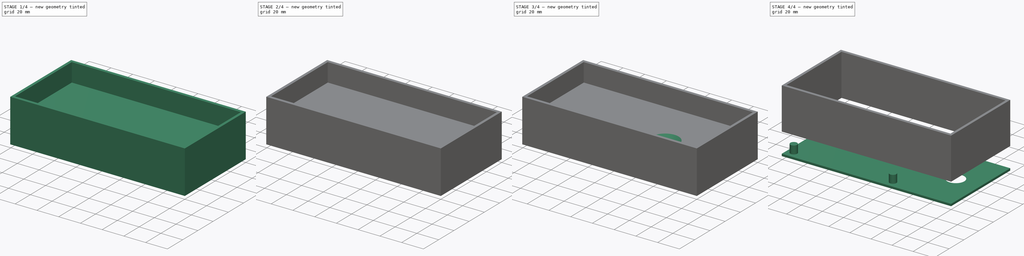
[diagram: build sequence overview — one tinted view per stage of 4, left to right]
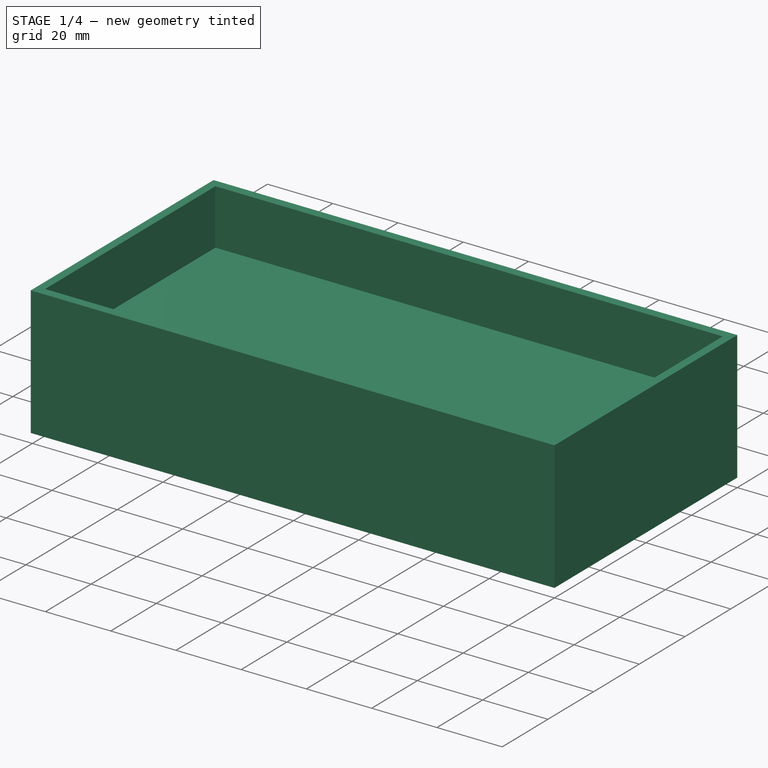
[diagram: stage 1 of 4 — iso view after this stage's code; geometry added in this stage tinted green]
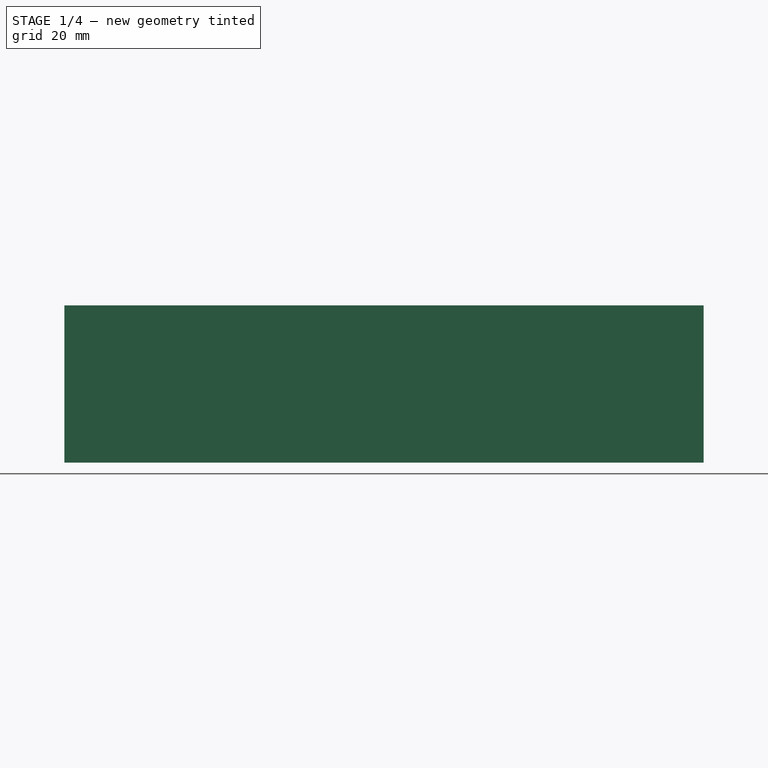
[diagram: stage 1 of 4 — front view after this stage's code; geometry added in this stage tinted green]
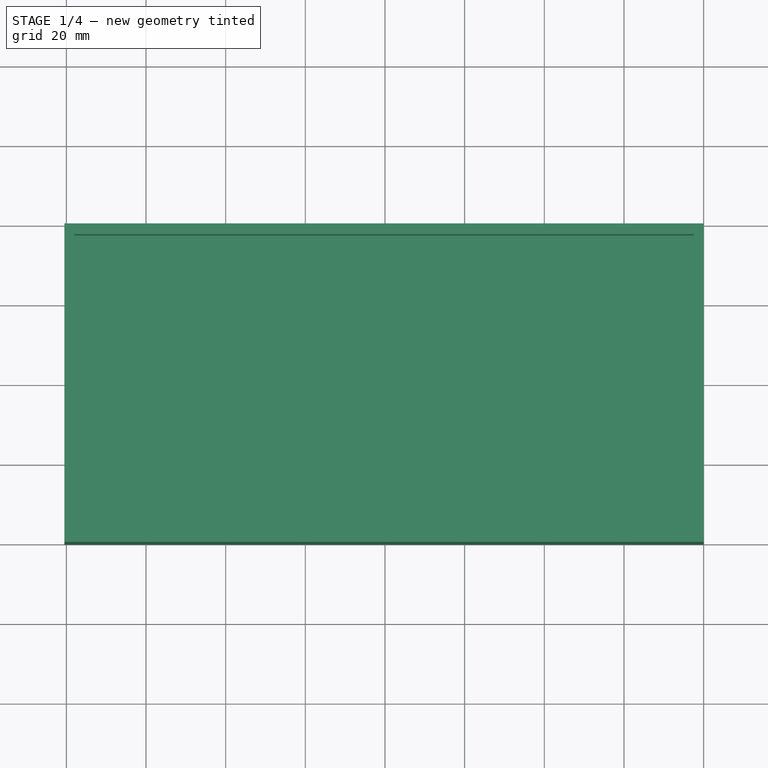
[diagram: stage 1 of 4 — top view after this stage's code; geometry added in this stage tinted green]
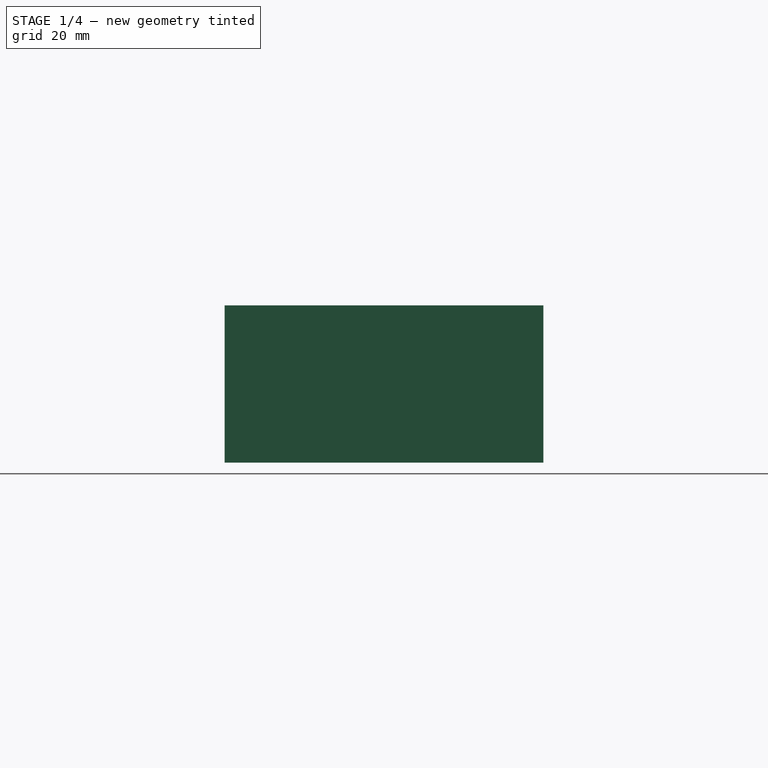
[diagram: stage 1 of 4 — right view after this stage's code; geometry added in this stage tinted green]
FCSTD DOCUMENT  (FreeCAD 0.20R29603 (Git))
Label: Case
License: All rights reserved
LicenseURL: http://en.wikipedia.org/wiki/All_rights_reserved
objects: Part::Feature×3, Sketcher::SketchObject×3, PartDesign::SubtractiveCone×3, PartDesign::Pad×2, PartDesign::AdditiveCone×2, PartDesign::Body×2, PartDesign::AdditiveCylinder×1, PartDesign::LinearPattern×1, PartDesign::Mirrored×1, PartDesign::MultiTransform×1, Part::FeaturePython×1
note: 28 computed .brp shape members not serialized (recipe doc carries the construction recipe); baked Part::Feature solids carry a one-line shape summary decoded from their .brp

FEATURE [Part::Feature] SpectDrone_1001  label="SpectDrone 002"
  shape: large baked B-rep (67 MB .brp); summary skipped
FEATURE [Part::Feature] SpectDroneControl_1001  label="SpectDroneControl 002"
  Placement = pos=(0,0,11.25) rot=(0,0,1;0rad)
  shape: bbox 101.6 x 73.67 x 14.11 mm, 5388 faces, 102 solids (baked)
FEATURE [Part::Feature] TestComponents_1001  label="TestComponents 002"
  Placement = pos=(0,0,-11.25) rot=(0,0,1;0rad)
  shape: bbox 101.6 x 73.66 x 14.56 mm, 4258 faces, 74 solids (baked)
FEATURE [Sketcher::SketchObject] Sketch
  FullyConstrained = true
  MapMode = 5
  Support = -> [XY_Plane]
  sketch-geometry (8):
    g0: LineSegment StartX=-100.5 StartY=40 StartZ=0 EndX=60 EndY=40 EndZ=0
    g1: LineSegment StartX=60 StartY=40 StartZ=0 EndX=60 EndY=-40 EndZ=0
    g2: LineSegment StartX=60 StartY=-40 StartZ=0 EndX=-100.5 EndY=-40 EndZ=0
    g3: LineSegment StartX=-100.5 StartY=-40 StartZ=0 EndX=-100.5 EndY=40 EndZ=0
    g4: LineSegment StartX=-98 StartY=37.25 StartZ=0 EndX=57.5 EndY=37.25 EndZ=0
    g5: LineSegment StartX=57.5 StartY=37.25 StartZ=0 EndX=57.5 EndY=-37.25 EndZ=0
    g6: LineSegment StartX=57.5 StartY=-37.25 StartZ=0 EndX=-98 EndY=-37.25 EndZ=0
    g7: LineSegment StartX=-98 StartY=-37.25 StartZ=0 EndX=-98 EndY=37.25 EndZ=0
  constraints (22):
    c: Coincident(g0,g1)
    c: Coincident(g1,g2)
    c: Coincident(g2,g3)
    c: Coincident(g3,g0)
    c: Horizontal(g0)
    c: Horizontal(g2)
    c: Vertical(g3)
    c: DistanceX(g-1,g1) = 60
    c: DistanceX(g2,g-1) = 100.5
    c: Symmetric(g1,g0,g-1)
    c: DistanceY(g1,g1) = 80
    c: Coincident(g4,g5)
    c: Coincident(g5,g6)
    c: Coincident(g6,g7)
    c: Coincident(g7,g4)
    c: Horizontal(g4)
    c: Horizontal(g6)
    c: Vertical(g7)
    c: DistanceX(g-1,g5) = 57.5
    c: DistanceX(g6,g-1) = 98
    c: Symmetric(g4,g5,g-1)
    c: DistanceY(g5,g5) = 74.5
FEATURE [PartDesign::Pad] Pad
  Direction = (0,0,1)
  Length = 39.5
  Length2 = 10
  Profile = -> Sketch
  ReferenceAxis = -> Sketch [N_Axis]
  Type = 0
FEATURE [Sketcher::SketchObject] Sketch001
  FullyConstrained = true
  MapMode = 5
  Placement = pos=(0,0,0) rot=(1,0,0;1.5708rad)
  Support = -> [XZ_Plane001]
  sketch-geometry (4):
    g0: LineSegment StartX=-100.5 StartY=22.5 StartZ=0 EndX=60 EndY=22.5 EndZ=0
    g1: LineSegment StartX=60 StartY=22.5 StartZ=0 EndX=60 EndY=20.5 EndZ=0
    g2: LineSegment StartX=60 StartY=20.5 StartZ=0 EndX=-100.5 EndY=20.5 EndZ=0
    g3: LineSegment StartX=-100.5 StartY=20.5 StartZ=0 EndX=-100.5 EndY=22.5 EndZ=0
  constraints (12):
    c: Coincident(g0,g1)
    c: Coincident(g1,g2)
    c: Coincident(g2,g3)
    c: Coincident(g3,g0)
    c: Horizontal(g0)
    c: Horizontal(g2)
    c: Vertical(g1)
    c: Vertical(g3)
    c: DistanceX(g0,g-1) = 100.5
    c: DistanceX(g-1,g0) = 60
    c: DistanceY(g1,g1) = 2
    c: DistanceY(g-1,g1) = 20.5
FEATURE [PartDesign::Pad] Pad001
  Direction = (0,-1,2e-16)
  Length = 80
  Length2 = 10
  Midplane = true
  Placement = pos=(0,0,0) rot=(1,0,0;1.5708rad)
  Profile = -> Sketch001
  ReferenceAxis = -> Sketch001 [N_Axis]
  Type = 0
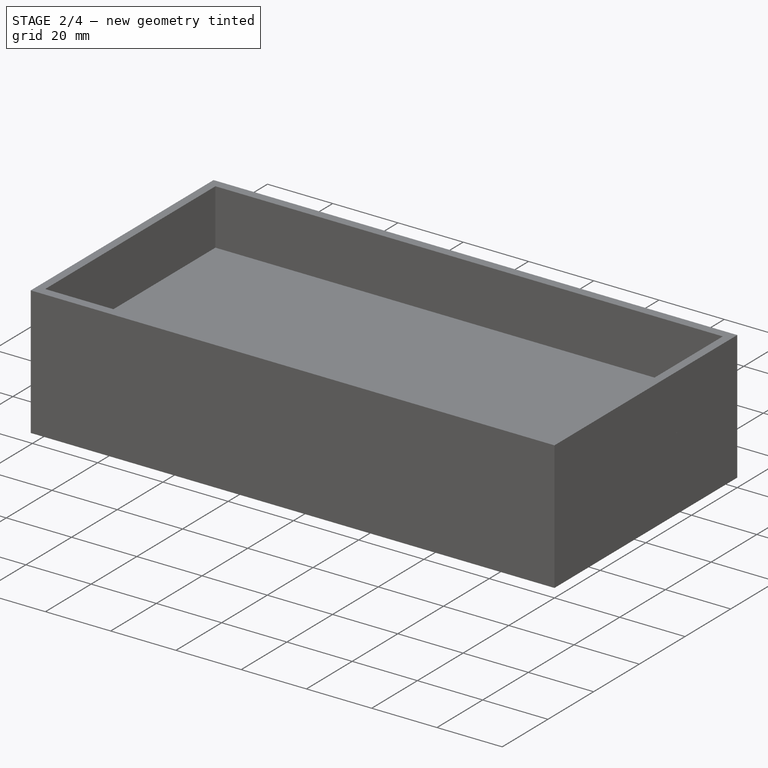
[diagram: stage 2 of 4 — iso view after this stage's code; geometry added in this stage tinted green]
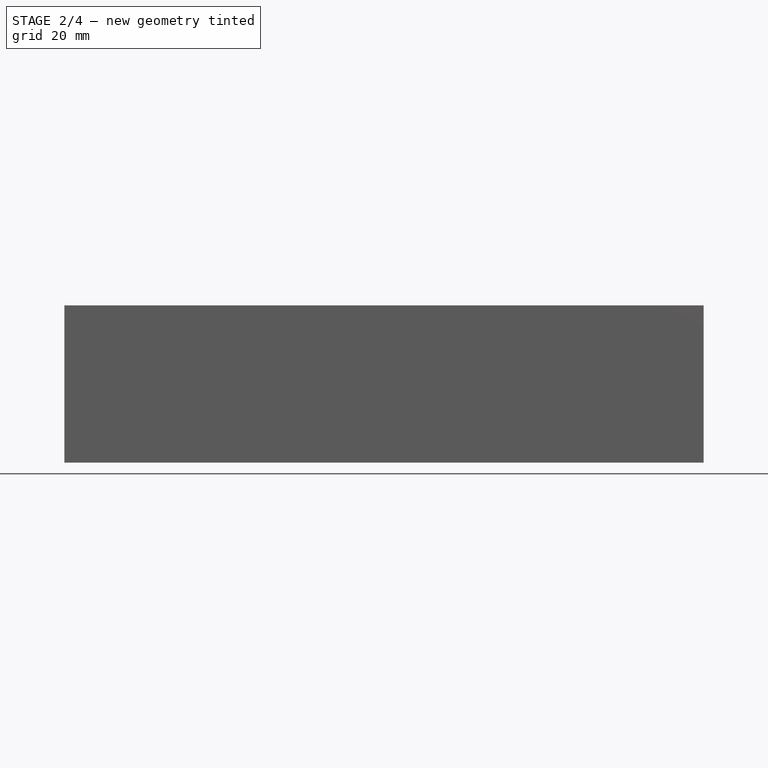
[diagram: stage 2 of 4 — front view after this stage's code; geometry added in this stage tinted green]
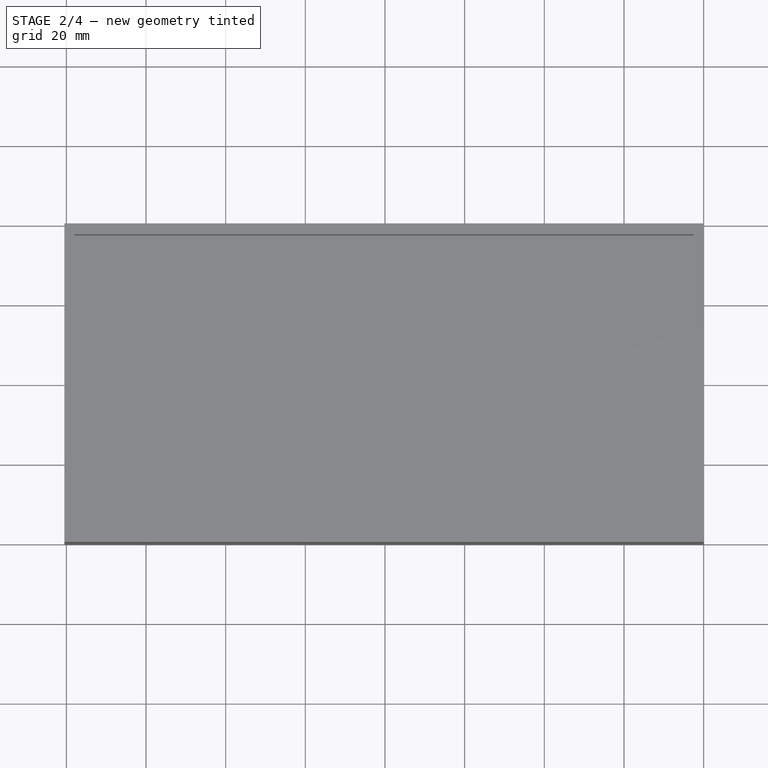
[diagram: stage 2 of 4 — top view after this stage's code; geometry added in this stage tinted green]
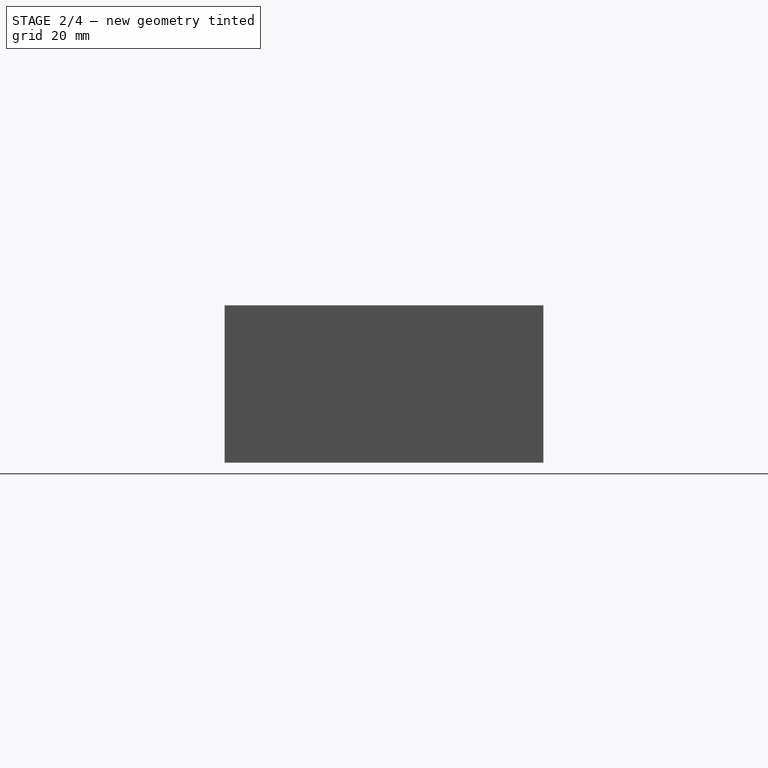
[diagram: stage 2 of 4 — right view after this stage's code; geometry added in this stage tinted green]
FEATURE [PartDesign::AdditiveCone] Cone002  label="Cone001"
  Angle = 360
  AttacherType = Attacher::AttachEngine3D
  AttachmentOffset = pos=(11.4,-12.2,12.75) rot=(0,0,1;0rad)
  BaseFeature = -> Pad001
  Height = 8.75
  MapMode = 5
  Placement = pos=(11.4,-12.2,12.75) rot=(0,0,1;0rad)
  Radius1 = 2.5
  Radius2 = 12.5
  Support = -> [XY_Plane001]
FEATURE [PartDesign::AdditiveCone] Cone003
  Angle = 360
  AttacherType = Attacher::AttachEngine3D
  AttachmentOffset = pos=(6.85,-25.85,12.75) rot=(0,0,1;0rad)
  BaseFeature = -> Cone002
  Height = 8.75
  MapMode = 5
  Placement = pos=(6.85,-25.85,12.75) rot=(0,0,1;0rad)
  Radius1 = 2.5
  Radius2 = 12.5
  Support = -> [XY_Plane001]
FEATURE [PartDesign::AdditiveCylinder] Cylinder
  Angle = 360
  AttacherType = Attacher::AttachEngine3D
  AttachmentOffset = pos=(-6.85,7.175,0) rot=(0,0,1;0rad)
  BaseFeature = -> Cone003
  FirstAngle = 0
  Height = 7.65
  MapMode = 5
  Placement = pos=(0,-33.025,20.5) rot=(1,0,0;3.14159rad)
  Radius = 3.25
  SecondAngle = 0
  Support = -> [Cone003]
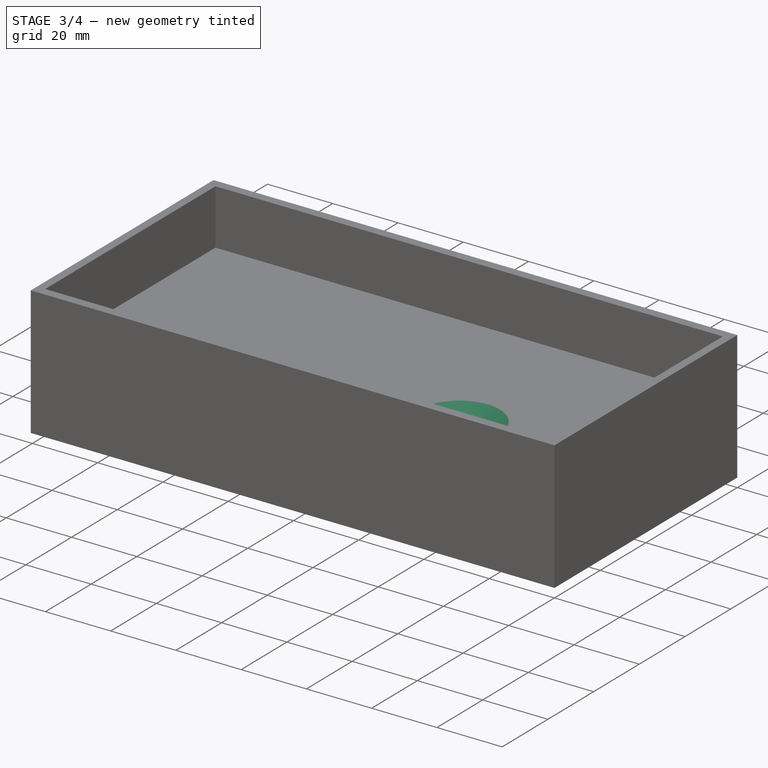
[diagram: stage 3 of 4 — iso view after this stage's code; geometry added in this stage tinted green]
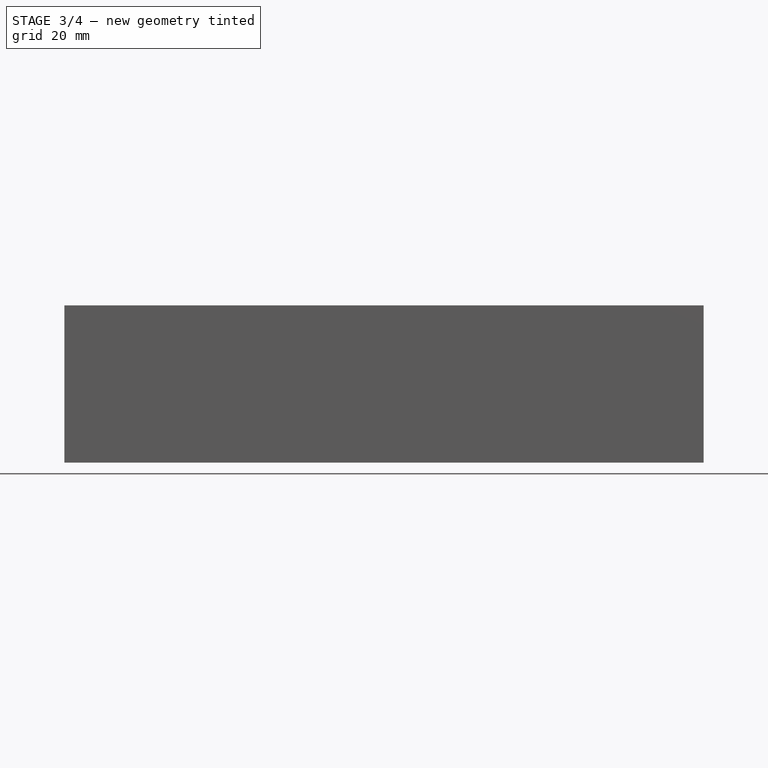
[diagram: stage 3 of 4 — front view after this stage's code; geometry added in this stage tinted green]
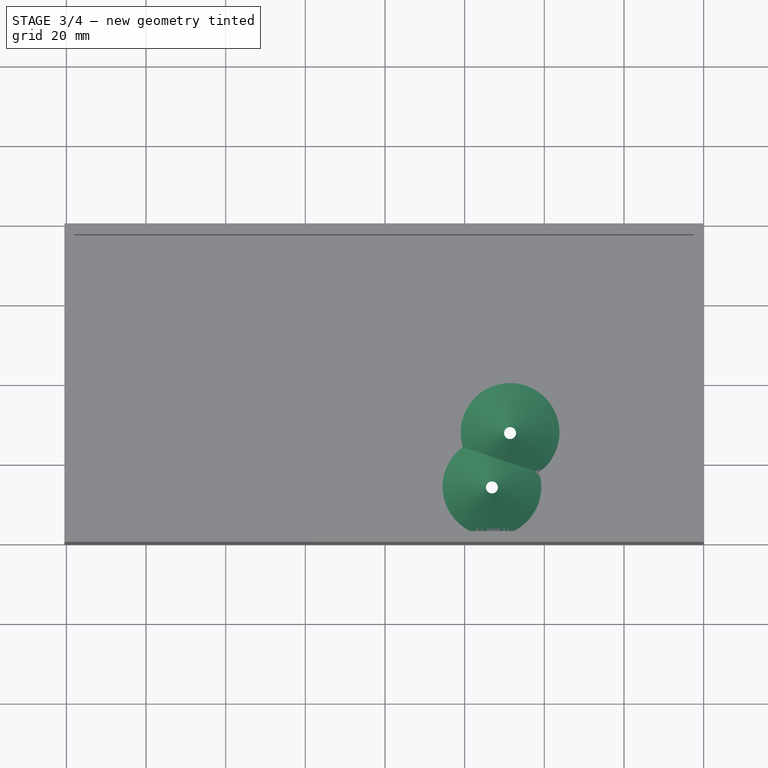
[diagram: stage 3 of 4 — top view after this stage's code; geometry added in this stage tinted green]
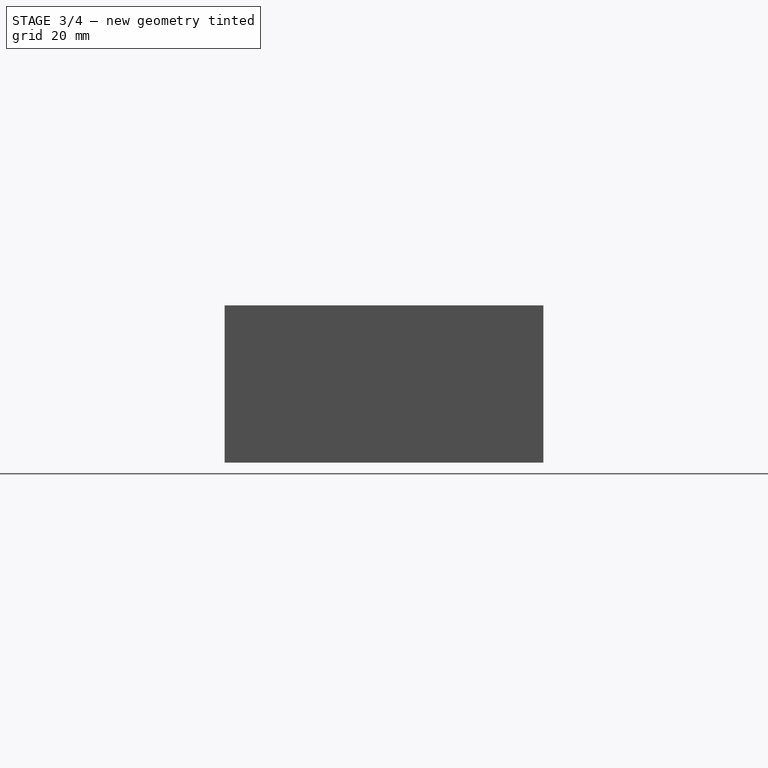
[diagram: stage 3 of 4 — right view after this stage's code; geometry added in this stage tinted green]
FEATURE [PartDesign::LinearPattern] LinearPattern
  Direction = -> X_Axis001
  Length = 94
  Occurrences = 2
  Placement = pos=(0,-33.025,20.5) rot=(1,0,0;3.14159rad)
  Reversed = true
FEATURE [PartDesign::Mirrored] Mirrored
  MirrorPlane = -> XZ_Plane001
  Placement = pos=(0,-33.025,20.5) rot=(1,0,0;3.14159rad)
FEATURE [PartDesign::MultiTransform] MultiTransform
  BaseFeature = -> Cylinder
  Originals = -> [Cylinder]
  Placement = pos=(0,-33.025,20.5) rot=(1,0,0;3.14159rad)
  Transformations = -> [LinearPattern,Mirrored]
FEATURE [PartDesign::SubtractiveCone] Cone001  label="Cone004"
  Angle = 360
  AttacherType = Attacher::AttachEngine3D
  AttachmentOffset = pos=(11.4,-12.2,12.75) rot=(0,0,1;0rad)
  BaseFeature = -> MultiTransform
  Height = 10.75
  MapMode = 5
  Placement = pos=(11.4,-12.2,12.75) rot=(0,0,1;0rad)
  Radius1 = 1.5
  Radius2 = 13.5
  Support = -> [XY_Plane001]
FEATURE [PartDesign::SubtractiveCone] Cone004  label="Cone005"
  Angle = 360
  AttacherType = Attacher::AttachEngine3D
  AttachmentOffset = pos=(6.85,-25.85,12.75) rot=(0,0,1;0rad)
  BaseFeature = -> Cone001
  Height = 10.75
  MapMode = 5
  Placement = pos=(6.85,-25.85,12.75) rot=(0,0,1;0rad)
  Radius1 = 1.5
  Radius2 = 13.5
  Support = -> [XY_Plane001]
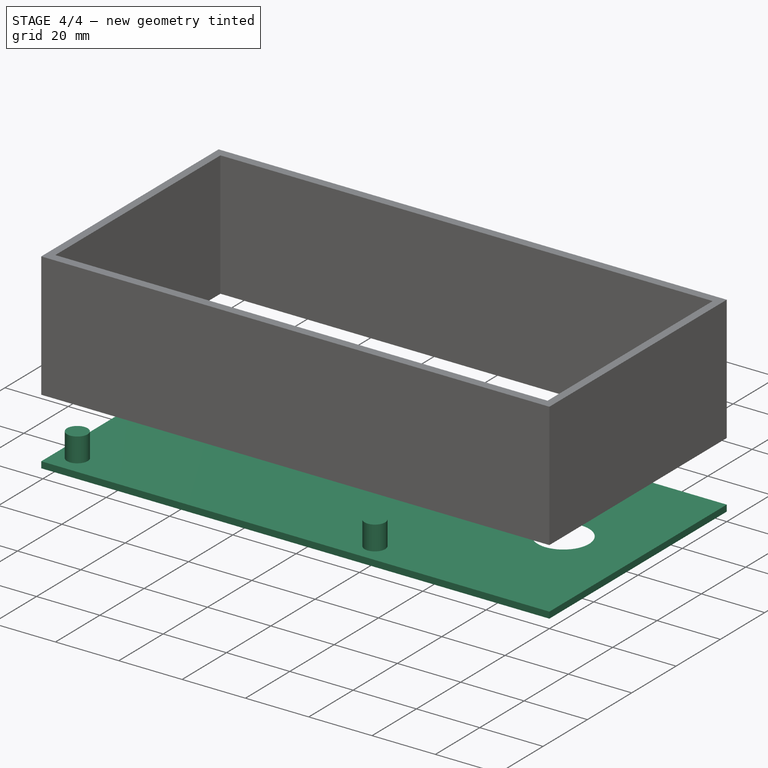
[diagram: stage 4 of 4 — iso view after this stage's code; geometry added in this stage tinted green]
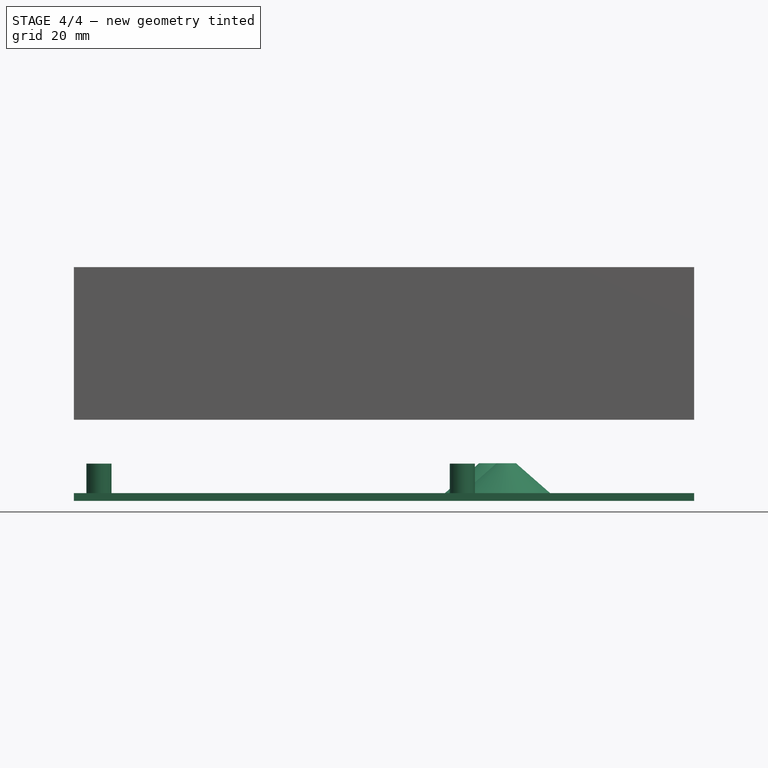
[diagram: stage 4 of 4 — front view after this stage's code; geometry added in this stage tinted green]
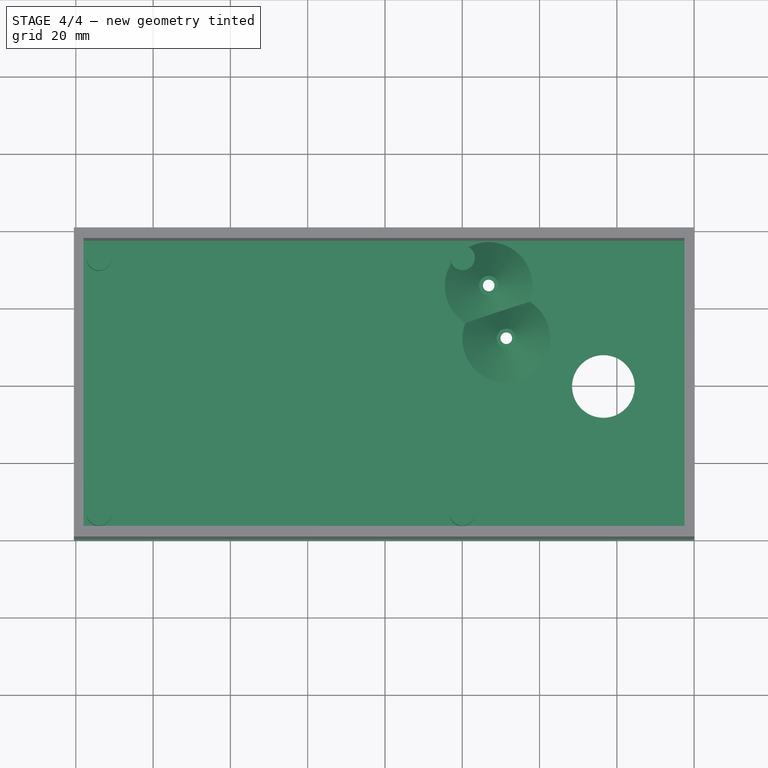
[diagram: stage 4 of 4 — top view after this stage's code; geometry added in this stage tinted green]
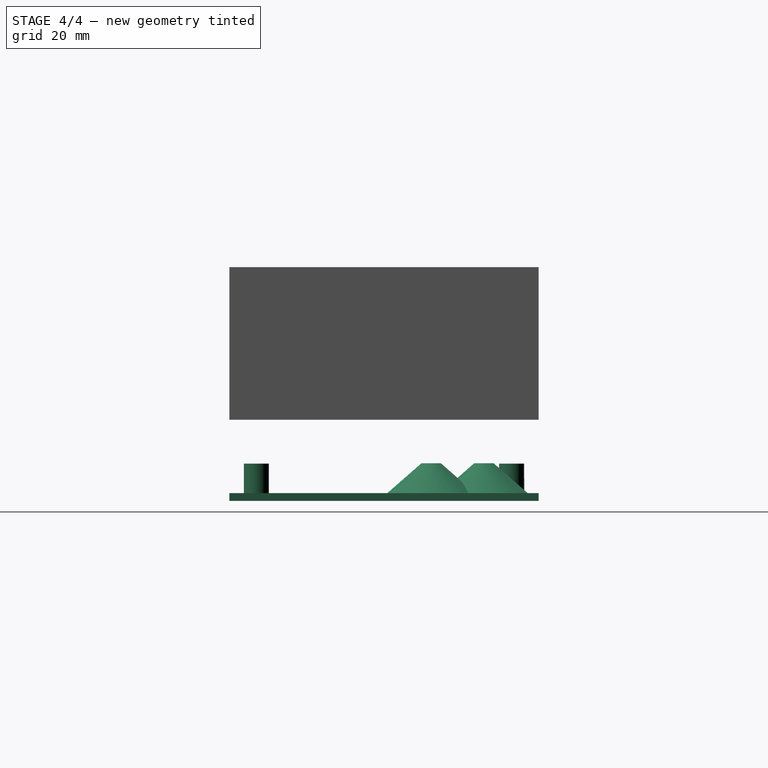
[diagram: stage 4 of 4 — right view after this stage's code; geometry added in this stage tinted green]
FEATURE [PartDesign::SubtractiveCone] Cone  label="Cone006"
  Angle = 360
  AttacherType = Attacher::AttachEngine3D
  AttachmentOffset = pos=(29.675,26,-5) rot=(0,0,1;0rad)
  BaseFeature = -> Cone004
  Height = 5
  MapMode = 5
  Placement = pos=(36.525,0.15,17.5) rot=(0,0,1;0rad)
  Radius1 = 1.5
  Radius2 = 12.5
  Support = -> [Cone004]
FEATURE [PartDesign::Body] Body001
  Group = -> [Sketch001,Pad001,Cone002,Cone003,Cylinder,MultiTransform,LinearPattern,Mirrored,Cone001,Cone004,Cone]
  Origin = -> Origin001
  Tip = -> Cone
FEATURE [Part::FeaturePython] Clone  label="Body002"  # Draft clone (typed FeaturePython)
  AttacherType = Attacher::AttachEngine3D
  Fuse = false
  Objects = -> [Body001]
  Placement = pos=(0,0,1.5) rot=(1,0,0;3.14159rad)
  Scale = (1,1,1)
FEATURE [Sketcher::SketchObject] Sketch002
  FullyConstrained = false
  MapMode = 5
  Placement = pos=(-100.5,0,0) rot=(0.57735,-0.57735,-0.57735;2.0944rad)
  Support = -> [Pad]
  sketch-geometry (4):
    g0: LineSegment StartX=-4.65885 StartY=6.33779 StartZ=0 EndX=5.35414 EndY=6.33779 EndZ=0
    g1: LineSegment StartX=5.35414 StartY=6.33779 StartZ=0 EndX=5.35414 EndY=12.3477 EndZ=0
    g2: LineSegment StartX=5.35414 StartY=12.3477 StartZ=0 EndX=-4.65885 EndY=12.3477 EndZ=0
    g3: LineSegment StartX=-4.65885 StartY=12.3477 StartZ=0 EndX=-4.65885 EndY=6.33779 EndZ=0
  constraints (8):
    c: Coincident(g0,g1)
    c: Coincident(g1,g2)
    c: Coincident(g2,g3)
    c: Coincident(g3,g0)
    c: Horizontal(g0)
    c: Horizontal(g2)
    c: Vertical(g1)
    c: Vertical(g3)
FEATURE [PartDesign::Body] Body
  Group = -> [Sketch,Pad,Sketch002]
  Origin = -> Origin
  Placement = pos=(0,0,-19) rot=(0,0,1;0rad)
  Tip = -> Pad
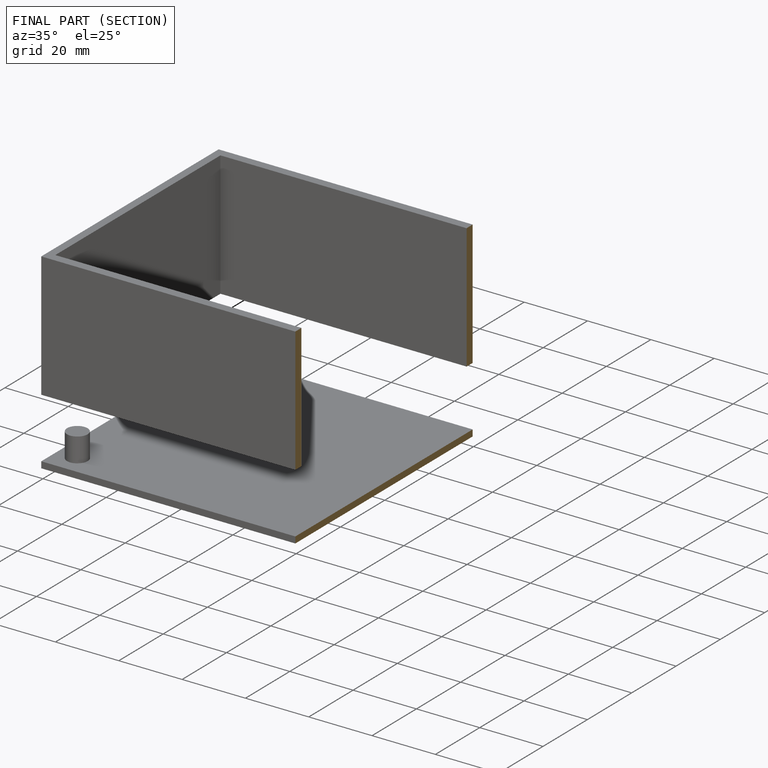
[diagram: finished part — half-section view (interior)]
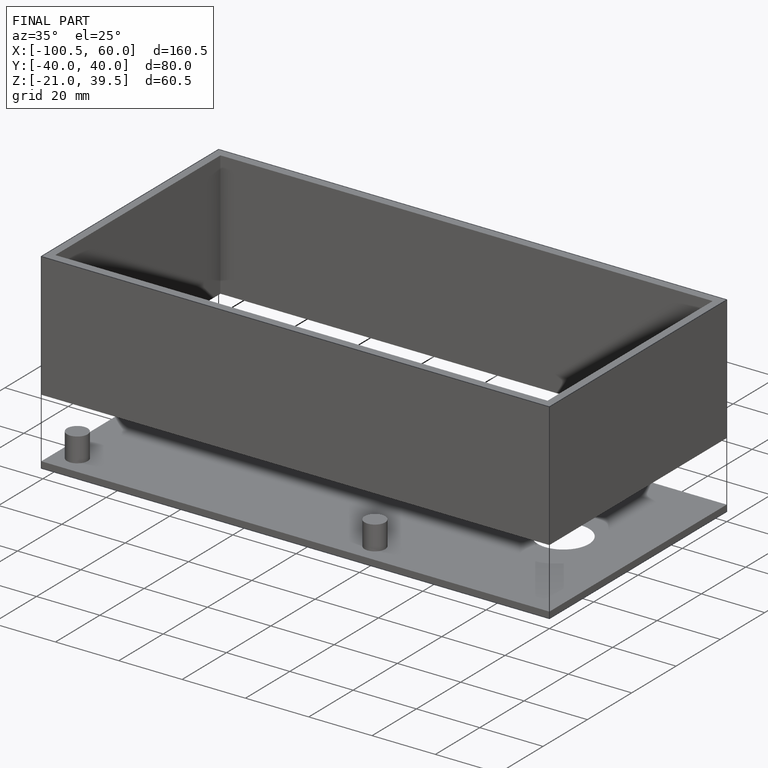
[diagram: finished part — iso view with bounding-box wireframe]
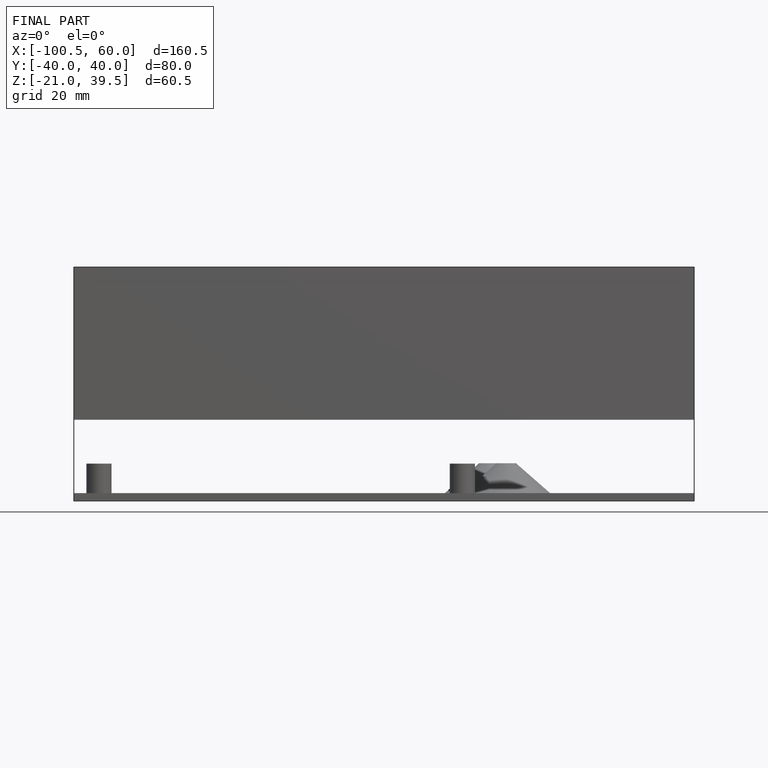
[diagram: finished part — front view with bounding-box wireframe]
